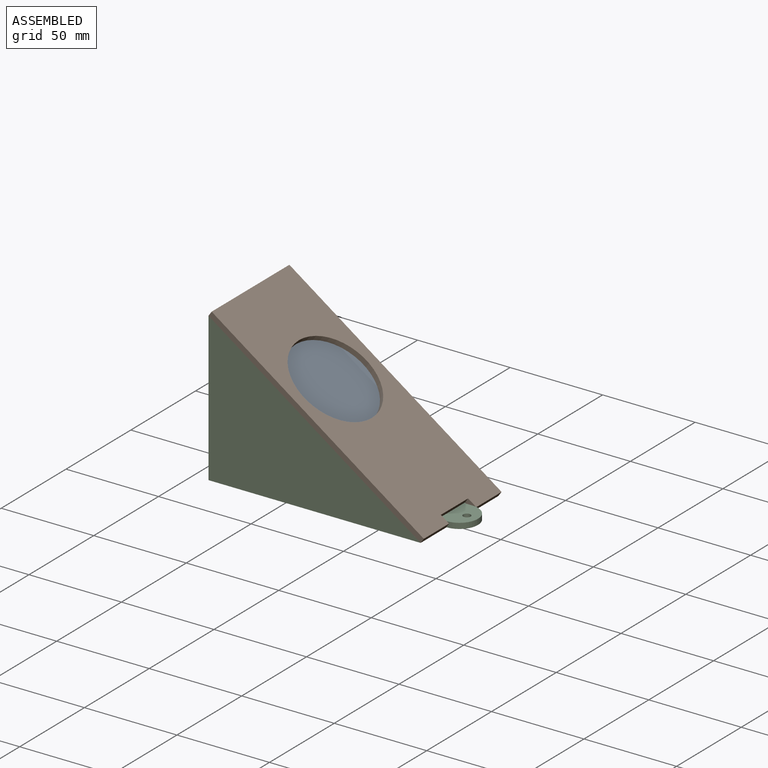
[diagram: assembled view]
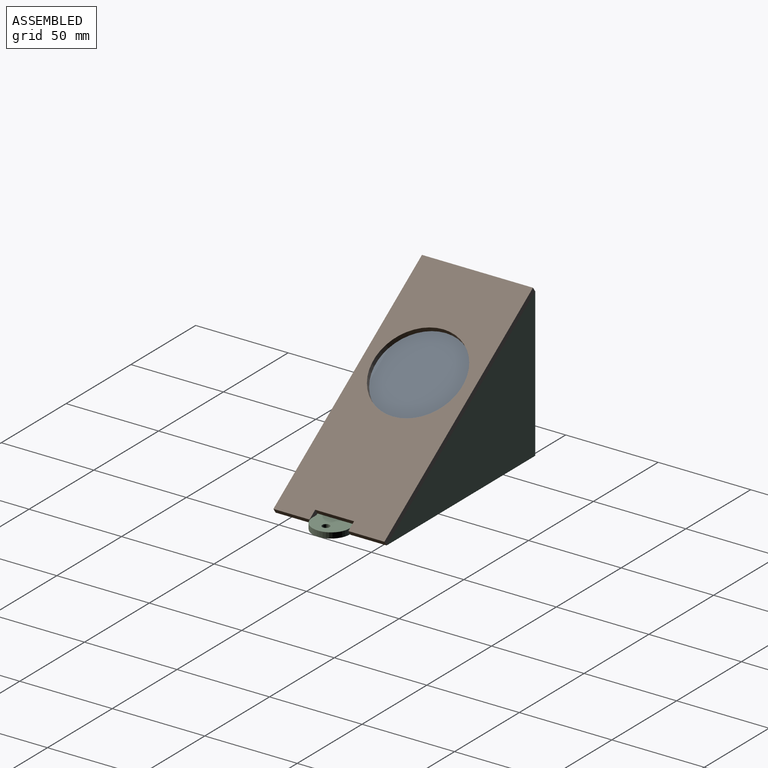
[diagram: assembled view, second angle]
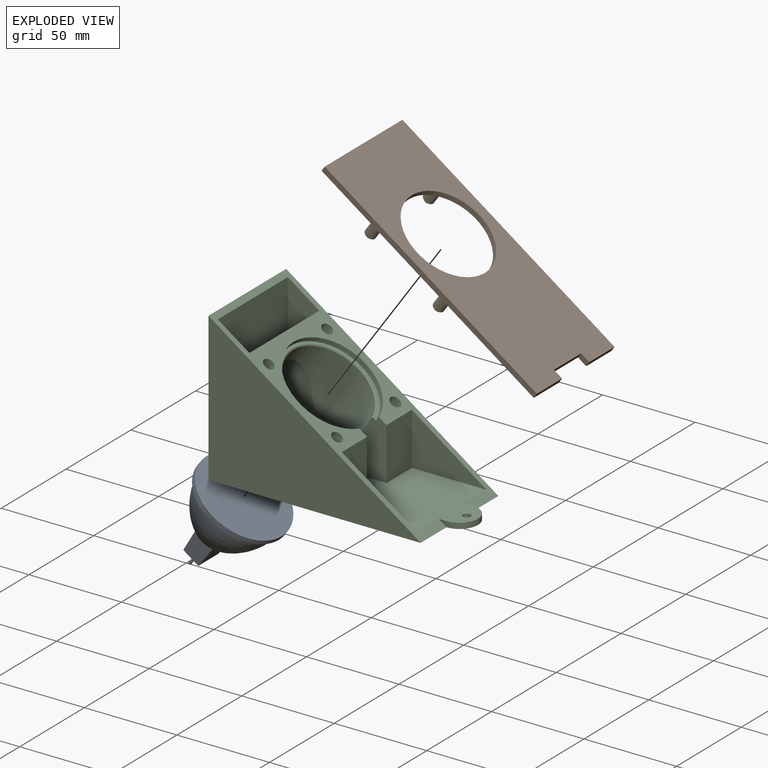
[diagram: exploded view]
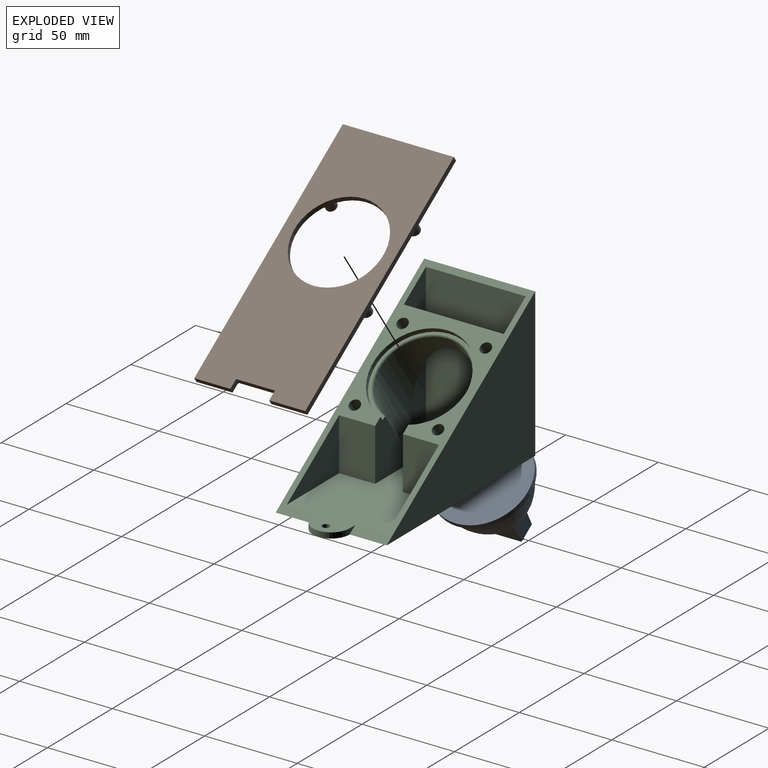
[diagram: exploded view, second angle]
ASSEMBLY  parts=3 mates=3
PART A: 20 faces, bbox 49.5x49.5x48.1 mm
  f0: plane 49.5x49.5mm, normal (0,0,-1), area 1924.4mm2, adj f4
  f1: plane 21.5x21.5mm, normal (0,0,1), area 156.2mm2, adj f2,f6,f7,f8,f9,f16,f17,f18
  f2: revolved ~46x46mm, area 3204.2mm2, adj f1,f3
  f3: plane 49.5x49.5mm, normal (0,0,1), area 262.5mm2, adj f2,f4
  f4: cylinder r=24.75mm len=49.5mm, axis (0,0,-1), area 404.3mm2, adj f0,f3
  f5: plane 16x10mm, normal (0,0,1), area 156.7mm2, adj f6,f7,f8,f9,f10,f12,f16,f17
  f6: plane 13.6x10.7mm, normal (-1,0,0.06), area 134.2mm2, adj f1,f5,f18,f19
  f7: plane 16.7x13.6mm, normal (0,-1,0.06), area 216mm2, adj f1,f5,f17,f18
  f8: plane 13.6x10.7mm, normal (1,0,0.06), area 134.2mm2, adj f1,f5,f16,f17
  f9: plane 16.7x13.6mm, normal (0,1,0.06), area 216mm2, adj f1,f5,f16,f19
  f10: cylinder r=0.7mm len=7.1mm, axis (0,0,-1), area 31.2mm2, adj f5,f15
  f11: plane 0.6x0.6mm, normal (0,0,1), area 0.3mm2, adj f15
  f12: cylinder r=0.7mm len=7.1mm, axis (0,0,-1), area 31.2mm2, adj f5,f14
  f13: plane 0.6x0.6mm, normal (0,0,1), area 0.3mm2, adj f14
  f14: torus R=0.3mm, axis (0,0,1), area 2.2mm2, adj f12,f13
  f15: torus R=0.3mm, axis (0,0,1), area 2.2mm2, adj f10,f11
  f16: cylinder r=0.5mm len=13.63mm, axis (-0.06,-0.06,1), area 10.7mm2, adj f1,f5,f8,f9
  f17: cylinder r=0.5mm len=13.63mm, axis (0.06,-0.06,-1), area 10.7mm2, adj f1,f5,f7,f8
  f18: cylinder r=0.5mm len=13.63mm, axis (0.06,0.06,1), area 10.7mm2, adj f1,f5,f6,f7
  f19: cylinder r=0.5mm len=13.63mm, axis (-0.06,0.06,-1), area 10.7mm2, adj f1,f5,f6,f9
PART B: 23 faces, bbox 140x60x15 mm
  f0: plane 19.5x3mm, normal (-1,0,0), area 58.5mm2, adj f1,f2,f6,f22
  f1: plane 140x60mm, normal (0,0,-1), area 6477mm2, adj f0,f2,f3,f4,f5,f19,f20,f21
  f2: plane 140x3mm, normal (0,1,0), area 420mm2, adj f0,f1,f5,f6
  f3: plane 19.5x3mm, normal (-1,0,0), area 58.5mm2, adj f1,f4,f6,f20
  f4: plane 140x3mm, normal (0,-1,0), area 420mm2, adj f1,f3,f5,f6
  f5: plane 60x3mm, normal (1,0,0), area 180mm2, adj f1,f2,f4,f6
  f6: plane 140x60mm, normal (0,0,1), area 6371.4mm2, adj f0,f2,f3,f4,f5,f7,f9,f11
  f7: cylinder r=2.9mm len=11mm, axis (0,0,-1), area 200.4mm2, adj f6,f18
  f8: plane 3.8x3.8mm, normal (0,0,1), area 11.3mm2, adj f18
  f9: cylinder r=2.9mm len=11mm, axis (0,0,-1), area 200.4mm2, adj f6,f16
  f10: plane 3.8x3.8mm, normal (0,0,1), area 11.3mm2, adj f16
  f11: cylinder r=2.9mm len=11mm, axis (0,0,-1), area 200.4mm2, adj f6,f17
  f12: plane 3.8x3.8mm, normal (0,0,1), area 11.3mm2, adj f17
  f13: cylinder r=2.9mm len=11mm, axis (0,0,-1), area 200.4mm2, adj f6,f15
  f14: plane 3.8x3.8mm, normal (0,0,1), area 11.3mm2, adj f15
  f15: cone r=1.9mm half-angle=45deg, axis (0,0,-1), area 21.3mm2, adj f13,f14
  f16: cone r=1.9mm half-angle=45deg, axis (0,0,-1), area 21.3mm2, adj f9,f10
  f17: cone r=1.9mm half-angle=45deg, axis (0,0,-1), area 21.3mm2, adj f11,f12
  f18: cone r=1.9mm half-angle=45deg, axis (0,0,-1), area 21.3mm2, adj f7,f8
  f19: cylinder r=24mm len=48mm, axis (0,0,1), area 452.4mm2, adj f1,f6
  f20: plane 5.4x3mm, normal (0,1,0), area 16.2mm2, adj f1,f3,f6,f21
  f21: plane 21x3mm, normal (-1,0,0), area 63mm2, adj f1,f6,f20,f22
  f22: plane 5.4x3mm, normal (0,-1,0), area 16.2mm2, adj f0,f1,f6,f21
PART C: 37 faces, bbox 134.7x60x87.2 mm
  f0: plane 114.68x80.3mm, normal (0.57,0,0.82), area 2290.9mm2, adj f1,f2,f4,f5,f6,f7,f8,f9
  f1: plane 80.3x60mm, normal (-1,0,0), area 4708mm2, adj f0,f2,f9,f10,f11,f28,f29,f30
  f2: plane 134.68x54mm, normal (0,0,1), area 4695.7mm2, adj f0,f1,f3,f4,f5,f6,f7,f8
  f3: cylinder r=23.3mm len=65.79mm, axis (0.57,0,0.82), area 3950.3mm2, adj f2,f13,f17,f18,f19
  f4: plane 28.29x19.5mm, normal (1,0,0), area 551.6mm2, adj f0,f2,f7,f18
  f5: plane 75.2x17mm, normal (0,1,0), area 1177.2mm2, adj f0,f2,f12,f13
  f6: plane 40.4x28.29mm, normal (0,1,0), area 571.3mm2, adj f0,f2,f14
  f7: plane 40.4x28.29mm, normal (0,-1,0), area 571.3mm2, adj f0,f2,f4
  f8: plane 75.2x17mm, normal (0,-1,0), area 1177.2mm2, adj f0,f2,f12,f13
  f9: plane 134.68x60mm, normal (0,0,-1), area 7169.9mm2, adj f0,f1,f10,f11,f31,f34,f35,f36
  f10: plane 114.68x80.3mm, normal (0,-1,0), area 4604.5mm2, adj f0,f1,f9
  f11: plane 114.68x80.3mm, normal (0,1,0), area 4604.5mm2, adj f0,f1,f9
  f12: plane 75.2x54mm, normal (1,0,0), area 4010.8mm2, adj f0,f2,f5,f8,f28,f29,f30
  f13: plane 63.3x54mm, normal (-1,0,0), area 1466.9mm2, adj f0,f2,f3,f5,f8,f20,f21,f22
  f14: plane 28.29x19.5mm, normal (1,0,0), area 551.6mm2, adj f0,f2,f6,f17
  f15: plane 51x40.85mm, normal (0.57,0,0.82), area 237.4mm2, adj f16,f17,f18,f19
  f16: cylinder r=25.5mm len=51mm, axis (0.57,0,0.82), area 406mm2, adj f0,f15,f17,f18
  f17: plane 31.2x28.83mm, normal (0,1,0), area 548mm2, adj f0,f2,f3,f14,f15,f16,f19
  f18: plane 31.2x28.83mm, normal (0,-1,0), area 548mm2, adj f0,f2,f3,f4,f15,f16,f19
  f19: cone r=23.8mm half-angle=45deg, axis (0.57,0,0.82), area 93.8mm2, adj f3,f15,f17,f18
  f20: cone r=0mm half-angle=59deg, axis (0.57,0,0.82), area 5.1mm2, adj f13,f21
  f21: cylinder r=3mm len=15.73mm, axis (0.57,0,0.82), area 235mm2, adj f0,f13,f20
  f22: cone r=0mm half-angle=59deg, axis (0.57,0,0.82), area 5.1mm2, adj f13,f23
  f23: cylinder r=3mm len=15.73mm, axis (0.57,0,0.82), area 235mm2, adj f0,f13,f22
  f24: cone r=0mm half-angle=59deg, axis (0.57,0,0.82), area 33mm2, adj f25
  f25: cylinder r=3mm len=15.73mm, axis (0.57,0,0.82), area 282.7mm2, adj f0,f24
  f26: cone r=0mm half-angle=59deg, axis (0.57,0,0.82), area 33mm2, adj f27
  f27: cylinder r=3mm len=15.73mm, axis (0.57,0,0.82), area 282.7mm2, adj f0,f26
  f28: plane 5x3mm, normal (0,1,0), area 15mm2, adj f1,f2,f12,f30
  f29: plane 5x3mm, normal (0,-1,0), area 15mm2, adj f1,f2,f12,f30
  f30: plane 10x3mm, normal (0,0,-1), area 30mm2, adj f1,f12,f28,f29
  f31: cylinder r=10mm len=20mm, axis (0,0,-1), area 94.2mm2, adj f1,f2,f9
  f32: plane 4.28x3mm, normal (0,1,0), area 6.4mm2, adj f0,f2,f34
  f33: plane 4.28x3mm, normal (0,-1,0), area 6.4mm2, adj f0,f2,f34
  f34: cylinder r=10mm len=20mm, axis (0,0,-1), area 94.2mm2, adj f2,f9,f32,f33
  f35: cylinder r=2mm len=4mm, axis (0,0,-1), area 37.7mm2, adj f2,f9
  f36: cylinder r=2mm len=4mm, axis (0,0,-1), area 37.7mm2, adj f2,f9
PLACE A rot(axis=(-0.69,-0.69,0.22),155.4deg) t=(30.33,-2.21,16.21)mm
PLACE B rot(axis=(0,-1,0),145deg) t=(41.91,-2.21,8.34)mm
PLACE C t=(-15.43,-2.21,-31.81)mm
MATE cylindrical A.f4 <-> C.f3  axis (0.57,0,0.82) through (30.33,-2.21,16.21)mm
MATE planar B.f19 <-> C.f3  axis (-0.57,0,-0.82) through (30.44,-2.21,16.37)mm
MATE planar A.f4 <-> C.f3  axis (-0.57,0,-0.82) through (28.84,-2.21,14.08)mm
